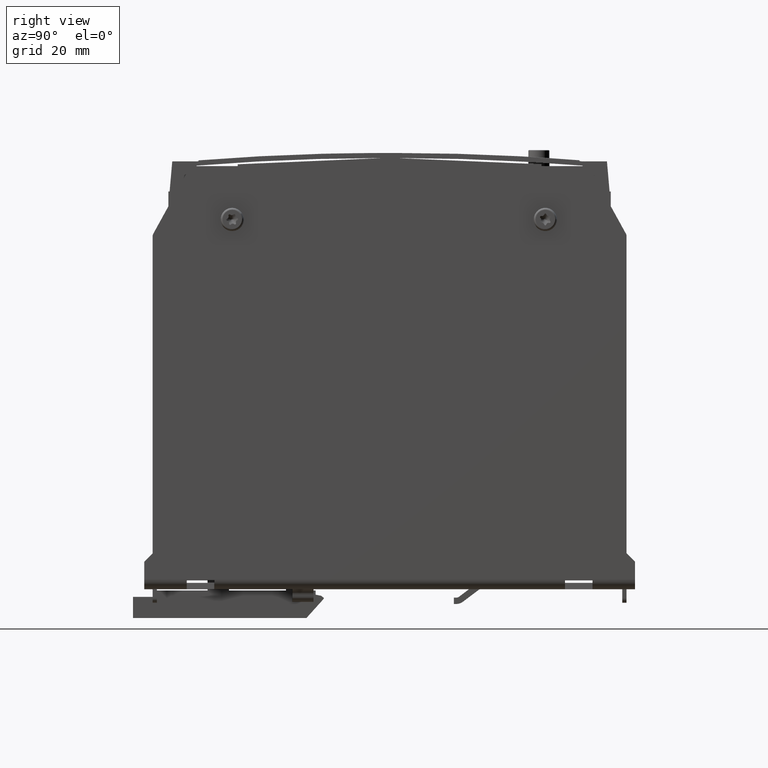
[diagram: clean part render]
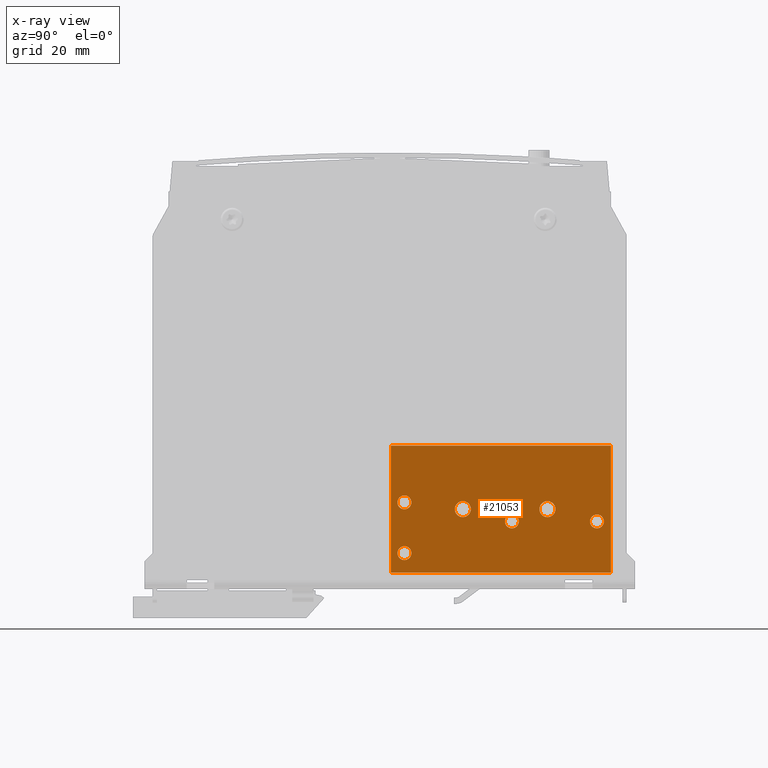
[diagram: x-ray — body ghosted, one internal face saturated and labeled with its STEP entity id]
A machine part, right view, then the same camera in x-ray: the body is ghosted and one INTERNAL B-rep face — a face not visible from any outside direction — is saturated and labeled: STEP entity #21053.
In plain terms, the highlighted planar face has unit normal (1, 0, 0).
Its self-contained STEP definition (entity closure, byte-faithful):
#20944=CARTESIAN_POINT('',(-0.787401574803145,0.137795275590563,0.399606299212604));
#20945=VERTEX_POINT('',#20944);
#20946=CARTESIAN_POINT('',(-0.787401574803145,0.137795275590563,0.334645669291345));
#20947=DIRECTION('',(1.0,0.0,0.0));
#20948=DIRECTION('',(0.0,0.0,-1.0));
#20949=AXIS2_PLACEMENT_3D('',#20946,#20947,#20948);
#20950=CIRCLE('',#20949,0.06496062992126);
#20951=EDGE_CURVE('',#20945,#20945,#20950,.T.);
#20956=CARTESIAN_POINT('',(-0.787401574803145,1.035433070866154,0.744094488188982));
#20957=DIRECTION('',(1.0,0.0,0.0));
#20958=DIRECTION('',(0.0,0.0,1.0));
#20959=AXIS2_PLACEMENT_3D('',#20956,#20957,#20958);
#20960=PLANE('',#20959);
#20961=CARTESIAN_POINT('',(-0.787401574803145,2.059055118110249,0.15354330708662));
#20962=VERTEX_POINT('',#20961);
#20963=CARTESIAN_POINT('',(-0.787401574803145,0.011811023622059,0.15354330708662));
#20964=VERTEX_POINT('',#20963);
#20965=CARTESIAN_POINT('',(-0.787401574803145,2.059055118110249,0.15354330708662));
#20966=DIRECTION('',(0.0,-1.0,0.0));
#20967=VECTOR('',#20966,2.047244094488189);
#20968=LINE('',#20965,#20967);
#20969=EDGE_CURVE('',#20962,#20964,#20968,.T.);
#20970=ORIENTED_EDGE('',*,*,#20969,.F.);
#20971=CARTESIAN_POINT('',(-0.787401574803145,2.059055118110249,1.334645669291345));
#20972=VERTEX_POINT('',#20971);
#20973=CARTESIAN_POINT('',(-0.787401574803145,2.059055118110249,1.334645669291345));
#20974=DIRECTION('',(0.0,0.0,-1.0));
#20975=VECTOR('',#20974,1.181102362204725);
#20976=LINE('',#20973,#20975);
#20977=EDGE_CURVE('',#20972,#20962,#20976,.T.);
#20978=ORIENTED_EDGE('',*,*,#20977,.F.);
#20979=CARTESIAN_POINT('',(-0.787401574803145,0.011811023622059,1.334645669291345));
#20980=VERTEX_POINT('',#20979);
#20981=CARTESIAN_POINT('',(-0.787401574803145,0.011811023622059,1.334645669291345));
#20982=DIRECTION('',(0.0,1.0,0.0));
#20983=VECTOR('',#20982,2.047244094488189);
#20984=LINE('',#20981,#20983);
#20985=EDGE_CURVE('',#20980,#20972,#20984,.T.);
#20986=ORIENTED_EDGE('',*,*,#20985,.F.);
#20987=CARTESIAN_POINT('',(-0.787401574803145,0.011811023622059,0.15354330708662));
#20988=DIRECTION('',(0.0,0.0,1.0));
#20989=VECTOR('',#20988,1.181102362204725);
#20990=LINE('',#20987,#20989);
#20991=EDGE_CURVE('',#20964,#20980,#20990,.T.);
#20992=ORIENTED_EDGE('',*,*,#20991,.F.);
#20993=EDGE_LOOP('',(#20970,#20978,#20986,#20992));
#20994=FACE_OUTER_BOUND('',#20993,.T.);
#20995=CARTESIAN_POINT('',(-0.787401574803145,0.137795275590563,0.872047244094494));
#20996=VERTEX_POINT('',#20995);
#20997=CARTESIAN_POINT('',(-0.787401574803145,0.137795275590563,0.807086614173234));
#20998=DIRECTION('',(1.0,0.0,0.0));
#20999=DIRECTION('',(0.0,0.0,-1.0));
#21000=AXIS2_PLACEMENT_3D('',#20997,#20998,#20999);
#21001=CIRCLE('',#21000,0.06496062992126);
#21002=EDGE_CURVE('',#20996,#20996,#21001,.T.);
#21003=ORIENTED_EDGE('',*,*,#21002,.F.);
#21004=EDGE_LOOP('',(#21003));
#21005=FACE_BOUND('',#21004,.T.);
#21006=CARTESIAN_POINT('',(-0.787401574803145,1.468503937007886,0.818897637795282));
#21007=VERTEX_POINT('',#21006);
#21008=CARTESIAN_POINT('',(-0.787401574803145,1.468503937007886,0.744094488188982));
#21009=DIRECTION('',(1.0,0.0,0.0));
#21010=DIRECTION('',(0.0,0.0,-1.0));
#21011=AXIS2_PLACEMENT_3D('',#21008,#21009,#21010);
#21012=CIRCLE('',#21011,0.074803149606299);
#21013=EDGE_CURVE('',#21007,#21007,#21012,.T.);
#21014=ORIENTED_EDGE('',*,*,#21013,.F.);
#21015=EDGE_LOOP('',(#21014));
#21016=FACE_BOUND('',#21015,.T.);
#21017=CARTESIAN_POINT('',(-0.787401574803145,1.929133858267729,0.694881889763786));
#21018=VERTEX_POINT('',#21017);
#21019=CARTESIAN_POINT('',(-0.787401574803145,1.929133858267729,0.629921259842526));
#21020=DIRECTION('',(1.0,0.0,0.0));
#21021=DIRECTION('',(0.0,0.0,-1.0));
#21022=AXIS2_PLACEMENT_3D('',#21019,#21020,#21021);
#21023=CIRCLE('',#21022,0.06496062992126);
#21024=EDGE_CURVE('',#21018,#21018,#21023,.T.);
#21025=ORIENTED_EDGE('',*,*,#21024,.F.);
#21026=EDGE_LOOP('',(#21025));
#21027=FACE_BOUND('',#21026,.T.);
#21028=CARTESIAN_POINT('',(-0.787401574803145,1.137795275590563,0.694881889763786));
#21029=VERTEX_POINT('',#21028);
#21030=CARTESIAN_POINT('',(-0.787401574803145,1.137795275590563,0.629921259842526));
#21031=DIRECTION('',(1.0,0.0,0.0));
#21032=DIRECTION('',(0.0,0.0,-1.0));
#21033=AXIS2_PLACEMENT_3D('',#21030,#21031,#21032);
#21034=CIRCLE('',#21033,0.06496062992126);
#21035=EDGE_CURVE('',#21029,#21029,#21034,.T.);
#21036=ORIENTED_EDGE('',*,*,#21035,.F.);
#21037=EDGE_LOOP('',(#21036));
#21038=FACE_BOUND('',#21037,.T.);
#21039=CARTESIAN_POINT('',(-0.787401574803145,0.681102362204737,0.818897637795282));
#21040=VERTEX_POINT('',#21039);
#21041=CARTESIAN_POINT('',(-0.787401574803145,0.681102362204737,0.744094488188982));
#21042=DIRECTION('',(1.0,0.0,0.0));
#21043=DIRECTION('',(0.0,0.0,-1.0));
#21044=AXIS2_PLACEMENT_3D('',#21041,#21042,#21043);
#21045=CIRCLE('',#21044,0.074803149606299);
#21046=EDGE_CURVE('',#21040,#21040,#21045,.T.);
#21047=ORIENTED_EDGE('',*,*,#21046,.F.);
#21048=EDGE_LOOP('',(#21047));
#21049=FACE_BOUND('',#21048,.T.);
#21050=ORIENTED_EDGE('',*,*,#20951,.F.);
#21051=EDGE_LOOP('',(#21050));
#21052=FACE_BOUND('',#21051,.T.);
#21053=ADVANCED_FACE('',(#20994,#21005,#21016,#21027,#21038,#21049,#21052),#20960,.T.);